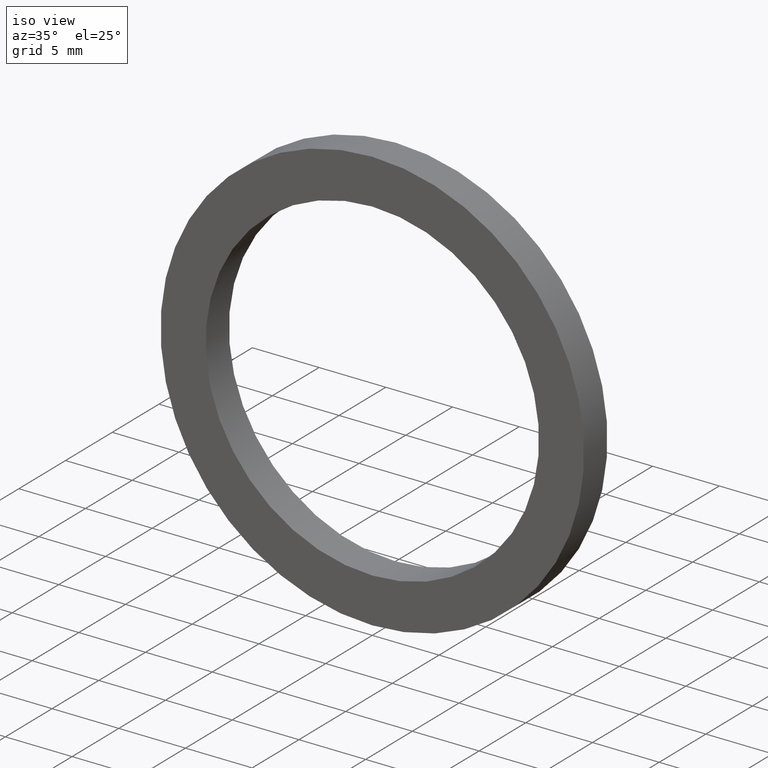
[diagram: clean part render]
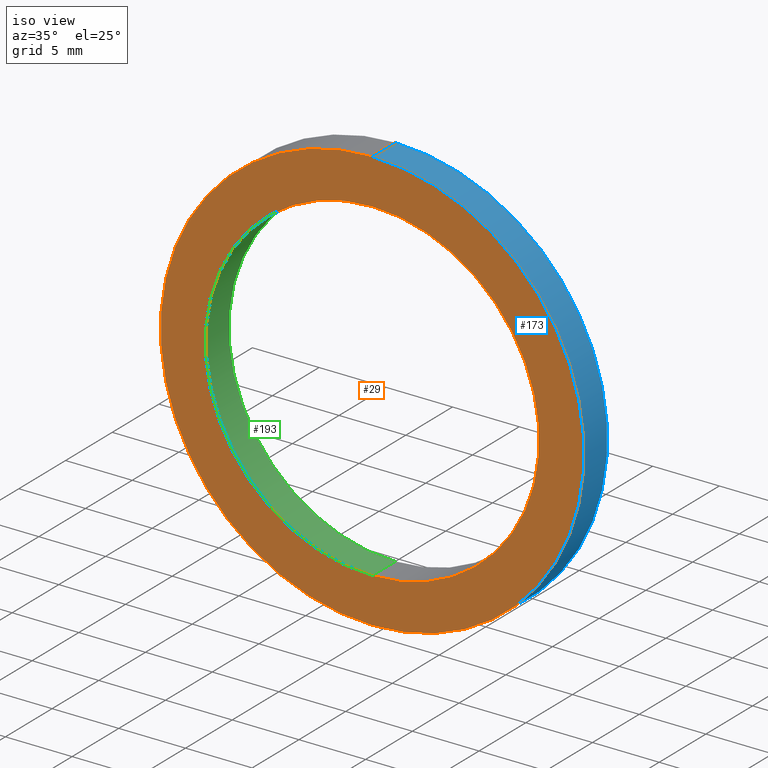
[diagram: same view with three faces highlighted in distinct colors, each labeled with its STEP entity id]
A machine part, iso view with three faces highlighted in distinct colors.
Their STEP definitions:

[orange] entity #29 — the highlighted planar face has unit normal (-0, 1, 0).
#7 = CARTESIAN_POINT ( 'NONE',  ( 1.944126793646424800E-015, 0.0000000000000000000, -15.87500000000001100 ) ) ;
#8 = AXIS2_PLACEMENT_3D ( 'NONE', #18, #124, #144 ) ;
#13 = VERTEX_POINT ( 'NONE', #177 ) ;
#14 = FACE_OUTER_BOUND ( 'NONE', #170, .T. ) ;
#18 = CARTESIAN_POINT ( 'NONE',  ( 0.0000000000000000000, 0.0000000000000000000, 0.0000000000000000000 ) ) ;
#29 = ADVANCED_FACE ( 'NONE', ( #14, #152 ), #179, .F. ) ;
#30 = CIRCLE ( 'NONE', #235, 15.87500000000001100 ) ;
#33 = EDGE_CURVE ( 'NONE', #212, #13, #39, .T. ) ;
#37 = DIRECTION ( 'NONE',  ( -0.0000000000000000000, 1.000000000000000000, 0.0000000000000000000 ) ) ;
#39 = CIRCLE ( 'NONE', #172, 12.50000000000001100 ) ;
#53 = DIRECTION ( 'NONE',  ( 0.0000000000000000000, 0.0000000000000000000, 1.000000000000000000 ) ) ;
#56 = EDGE_LOOP ( 'NONE', ( #181, #128 ) ) ;
#63 = ORIENTED_EDGE ( 'NONE', *, *, #186, .F. ) ;
#67 = AXIS2_PLACEMENT_3D ( 'NONE', #243, #37, #204 ) ;
#76 = VERTEX_POINT ( 'NONE', #92 ) ;
#78 = CARTESIAN_POINT ( 'NONE',  ( 1.530808498934192900E-015, 0.0000000000000000000, -12.50000000000001100 ) ) ;
#83 = EDGE_CURVE ( 'NONE', #237, #76, #192, .T. ) ;
#92 = CARTESIAN_POINT ( 'NONE',  ( 0.0000000000000000000, 0.0000000000000000000, 15.87500000000001100 ) ) ;
#100 = CIRCLE ( 'NONE', #207, 12.50000000000001100 ) ;
#124 = DIRECTION ( 'NONE',  ( -0.0000000000000000000, 1.000000000000000000, -0.0000000000000000000 ) ) ;
#127 = DIRECTION ( 'NONE',  ( -0.0000000000000000000, 1.000000000000000000, -0.0000000000000000000 ) ) ;
#128 = ORIENTED_EDGE ( 'NONE', *, *, #33, .T. ) ;
#134 = EDGE_CURVE ( 'NONE', #13, #212, #100, .T. ) ;
#144 = DIRECTION ( 'NONE',  ( 0.0000000000000000000, 0.0000000000000000000, 1.000000000000000000 ) ) ;
#152 = FACE_BOUND ( 'NONE', #56, .T. ) ;
#170 = EDGE_LOOP ( 'NONE', ( #63, #176 ) ) ;
#172 = AXIS2_PLACEMENT_3D ( 'NONE', #203, #201, #53 ) ;
#176 = ORIENTED_EDGE ( 'NONE', *, *, #83, .F. ) ;
#177 = CARTESIAN_POINT ( 'NONE',  ( 0.0000000000000000000, 0.0000000000000000000, 12.50000000000001100 ) ) ;
#179 = PLANE ( 'NONE',  #67 ) ;
#181 = ORIENTED_EDGE ( 'NONE', *, *, #134, .T. ) ;
#184 = CARTESIAN_POINT ( 'NONE',  ( 0.0000000000000000000, 0.0000000000000000000, 0.0000000000000000000 ) ) ;
#186 = EDGE_CURVE ( 'NONE', #76, #237, #30, .T. ) ;
#188 = CARTESIAN_POINT ( 'NONE',  ( 0.0000000000000000000, 0.0000000000000000000, 0.0000000000000000000 ) ) ;
#192 = CIRCLE ( 'NONE', #8, 15.87500000000001100 ) ;
#201 = DIRECTION ( 'NONE',  ( -0.0000000000000000000, 1.000000000000000000, -0.0000000000000000000 ) ) ;
#203 = CARTESIAN_POINT ( 'NONE',  ( 0.0000000000000000000, 0.0000000000000000000, 0.0000000000000000000 ) ) ;
#204 = DIRECTION ( 'NONE',  ( 0.0000000000000000000, 0.0000000000000000000, 1.000000000000000000 ) ) ;
#205 = DIRECTION ( 'NONE',  ( -0.0000000000000000000, 1.000000000000000000, -0.0000000000000000000 ) ) ;
#207 = AXIS2_PLACEMENT_3D ( 'NONE', #184, #127, #209 ) ;
#209 = DIRECTION ( 'NONE',  ( 0.0000000000000000000, 0.0000000000000000000, 1.000000000000000000 ) ) ;
#212 = VERTEX_POINT ( 'NONE', #78 ) ;
#225 = DIRECTION ( 'NONE',  ( 0.0000000000000000000, 0.0000000000000000000, 1.000000000000000000 ) ) ;
#235 = AXIS2_PLACEMENT_3D ( 'NONE', #188, #205, #225 ) ;
#237 = VERTEX_POINT ( 'NONE', #7 ) ;
#243 = CARTESIAN_POINT ( 'NONE',  ( 12.50000000000001100, 0.0000000000000000000, 0.0000000000000000000 ) ) ;

[blue] entity #173 — the highlighted cylindrical surface (partial cylindrical patch) has radius 15.875 mm, axis along (-0, 1, -0).
#5 = LINE ( 'NONE', #75, #45 ) ;
#7 = CARTESIAN_POINT ( 'NONE',  ( 1.944126793646424800E-015, 0.0000000000000000000, -15.87500000000001100 ) ) ;
#24 = DIRECTION ( 'NONE',  ( 0.0000000000000000000, 0.0000000000000000000, 1.000000000000000000 ) ) ;
#26 = ORIENTED_EDGE ( 'NONE', *, *, #109, .T. ) ;
#30 = CIRCLE ( 'NONE', #235, 15.87500000000001100 ) ;
#38 = CARTESIAN_POINT ( 'NONE',  ( 0.0000000000000000000, 2.500000000000002200, 15.87500000000001100 ) ) ;
#43 = EDGE_LOOP ( 'NONE', ( #199, #26, #117, #102 ) ) ;
#45 = VECTOR ( 'NONE', #62, 1000.000000000000000 ) ;
#50 = CIRCLE ( 'NONE', #202, 15.87500000000001100 ) ;
#51 = VERTEX_POINT ( 'NONE', #74 ) ;
#55 = DIRECTION ( 'NONE',  ( -0.0000000000000000000, 1.000000000000000000, -0.0000000000000000000 ) ) ;
#62 = DIRECTION ( 'NONE',  ( -0.0000000000000000000, 1.000000000000000000, -0.0000000000000000000 ) ) ;
#74 = CARTESIAN_POINT ( 'NONE',  ( 1.944126793646424800E-015, 2.500000000000002200, -15.87500000000001100 ) ) ;
#75 = CARTESIAN_POINT ( 'NONE',  ( 0.0000000000000000000, 77.14414226561778800, 15.87500000000001100 ) ) ;
#76 = VERTEX_POINT ( 'NONE', #92 ) ;
#82 = LINE ( 'NONE', #161, #84 ) ;
#84 = VECTOR ( 'NONE', #55, 1000.000000000000000 ) ;
#92 = CARTESIAN_POINT ( 'NONE',  ( 0.0000000000000000000, 0.0000000000000000000, 15.87500000000001100 ) ) ;
#102 = ORIENTED_EDGE ( 'NONE', *, *, #148, .F. ) ;
#109 = EDGE_CURVE ( 'NONE', #237, #51, #82, .T. ) ;
#110 = CARTESIAN_POINT ( 'NONE',  ( 0.0000000000000000000, 2.500000000000002200, 0.0000000000000000000 ) ) ;
#111 = DIRECTION ( 'NONE',  ( 0.0000000000000000000, 0.0000000000000000000, 1.000000000000000000 ) ) ;
#117 = ORIENTED_EDGE ( 'NONE', *, *, #136, .F. ) ;
#126 = CARTESIAN_POINT ( 'NONE',  ( 0.0000000000000000000, 77.14414226561778800, 0.0000000000000000000 ) ) ;
#132 = DIRECTION ( 'NONE',  ( -0.0000000000000000000, 1.000000000000000000, -0.0000000000000000000 ) ) ;
#136 = EDGE_CURVE ( 'NONE', #187, #51, #50, .T. ) ;
#139 = FACE_OUTER_BOUND ( 'NONE', #43, .T. ) ;
#148 = EDGE_CURVE ( 'NONE', #76, #187, #5, .T. ) ;
#161 = CARTESIAN_POINT ( 'NONE',  ( 1.944126793646424800E-015, 77.14414226561778800, -15.87500000000001100 ) ) ;
#173 = ADVANCED_FACE ( 'NONE', ( #139 ), #178, .T. ) ;
#178 = CYLINDRICAL_SURFACE ( 'NONE', #240, 15.87500000000001100 ) ;
#186 = EDGE_CURVE ( 'NONE', #76, #237, #30, .T. ) ;
#187 = VERTEX_POINT ( 'NONE', #38 ) ;
#188 = CARTESIAN_POINT ( 'NONE',  ( 0.0000000000000000000, 0.0000000000000000000, 0.0000000000000000000 ) ) ;
#199 = ORIENTED_EDGE ( 'NONE', *, *, #186, .T. ) ;
#202 = AXIS2_PLACEMENT_3D ( 'NONE', #110, #132, #111 ) ;
#205 = DIRECTION ( 'NONE',  ( -0.0000000000000000000, 1.000000000000000000, -0.0000000000000000000 ) ) ;
#220 = DIRECTION ( 'NONE',  ( -0.0000000000000000000, 1.000000000000000000, -0.0000000000000000000 ) ) ;
#225 = DIRECTION ( 'NONE',  ( 0.0000000000000000000, 0.0000000000000000000, 1.000000000000000000 ) ) ;
#235 = AXIS2_PLACEMENT_3D ( 'NONE', #188, #205, #225 ) ;
#237 = VERTEX_POINT ( 'NONE', #7 ) ;
#240 = AXIS2_PLACEMENT_3D ( 'NONE', #126, #220, #24 ) ;

[green] entity #193 — the highlighted cylindrical surface (partial cylindrical patch) has radius 12.5 mm, axis along (-0, 1, -0).
#1 = DIRECTION ( 'NONE',  ( -0.0000000000000000000, 1.000000000000000000, -0.0000000000000000000 ) ) ;
#4 = CARTESIAN_POINT ( 'NONE',  ( 0.0000000000000000000, 77.14414226561778800, 0.0000000000000000000 ) ) ;
#13 = VERTEX_POINT ( 'NONE', #177 ) ;
#27 = ORIENTED_EDGE ( 'NONE', *, *, #46, .T. ) ;
#33 = EDGE_CURVE ( 'NONE', #212, #13, #39, .T. ) ;
#34 = DIRECTION ( 'NONE',  ( -0.0000000000000000000, 1.000000000000000000, -0.0000000000000000000 ) ) ;
#35 = CARTESIAN_POINT ( 'NONE',  ( 0.0000000000000000000, 77.14414226561778800, 12.50000000000001100 ) ) ;
#39 = CIRCLE ( 'NONE', #172, 12.50000000000001100 ) ;
#46 = EDGE_CURVE ( 'NONE', #171, #69, #104, .T. ) ;
#53 = DIRECTION ( 'NONE',  ( 0.0000000000000000000, 0.0000000000000000000, 1.000000000000000000 ) ) ;
#54 = EDGE_CURVE ( 'NONE', #13, #69, #241, .T. ) ;
#58 = DIRECTION ( 'NONE',  ( 0.0000000000000000000, 0.0000000000000000000, 1.000000000000000000 ) ) ;
#69 = VERTEX_POINT ( 'NONE', #185 ) ;
#78 = CARTESIAN_POINT ( 'NONE',  ( 1.530808498934192900E-015, 0.0000000000000000000, -12.50000000000001100 ) ) ;
#87 = VECTOR ( 'NONE', #1, 1000.000000000000000 ) ;
#88 = CARTESIAN_POINT ( 'NONE',  ( 0.0000000000000000000, 2.500000000000002200, 0.0000000000000000000 ) ) ;
#90 = CYLINDRICAL_SURFACE ( 'NONE', #194, 12.50000000000001100 ) ;
#97 = CARTESIAN_POINT ( 'NONE',  ( 1.530808498934192900E-015, 2.500000000000002200, -12.50000000000001100 ) ) ;
#98 = ORIENTED_EDGE ( 'NONE', *, *, #33, .F. ) ;
#104 = CIRCLE ( 'NONE', #190, 12.50000000000001100 ) ;
#108 = CARTESIAN_POINT ( 'NONE',  ( 1.530808498934192900E-015, 77.14414226561778800, -12.50000000000001100 ) ) ;
#119 = EDGE_CURVE ( 'NONE', #212, #171, #189, .T. ) ;
#131 = FACE_OUTER_BOUND ( 'NONE', #158, .T. ) ;
#138 = ORIENTED_EDGE ( 'NONE', *, *, #54, .F. ) ;
#158 = EDGE_LOOP ( 'NONE', ( #98, #215, #27, #138 ) ) ;
#162 = DIRECTION ( 'NONE',  ( -0.0000000000000000000, 1.000000000000000000, -0.0000000000000000000 ) ) ;
#166 = VECTOR ( 'NONE', #222, 1000.000000000000000 ) ;
#171 = VERTEX_POINT ( 'NONE', #97 ) ;
#172 = AXIS2_PLACEMENT_3D ( 'NONE', #203, #201, #53 ) ;
#177 = CARTESIAN_POINT ( 'NONE',  ( 0.0000000000000000000, 0.0000000000000000000, 12.50000000000001100 ) ) ;
#185 = CARTESIAN_POINT ( 'NONE',  ( 0.0000000000000000000, 2.500000000000002200, 12.50000000000001100 ) ) ;
#189 = LINE ( 'NONE', #108, #166 ) ;
#190 = AXIS2_PLACEMENT_3D ( 'NONE', #88, #34, #242 ) ;
#193 = ADVANCED_FACE ( 'NONE', ( #131 ), #90, .F. ) ;
#194 = AXIS2_PLACEMENT_3D ( 'NONE', #4, #162, #58 ) ;
#201 = DIRECTION ( 'NONE',  ( -0.0000000000000000000, 1.000000000000000000, -0.0000000000000000000 ) ) ;
#203 = CARTESIAN_POINT ( 'NONE',  ( 0.0000000000000000000, 0.0000000000000000000, 0.0000000000000000000 ) ) ;
#212 = VERTEX_POINT ( 'NONE', #78 ) ;
#215 = ORIENTED_EDGE ( 'NONE', *, *, #119, .T. ) ;
#222 = DIRECTION ( 'NONE',  ( -0.0000000000000000000, 1.000000000000000000, -0.0000000000000000000 ) ) ;
#241 = LINE ( 'NONE', #35, #87 ) ;
#242 = DIRECTION ( 'NONE',  ( 0.0000000000000000000, 0.0000000000000000000, 1.000000000000000000 ) ) ;